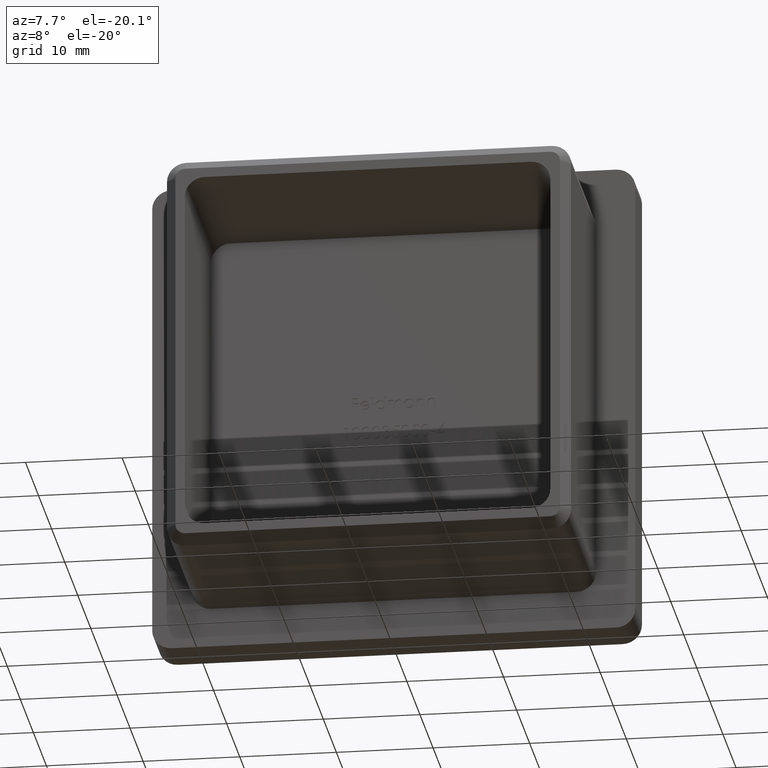
[diagram: clean part render]
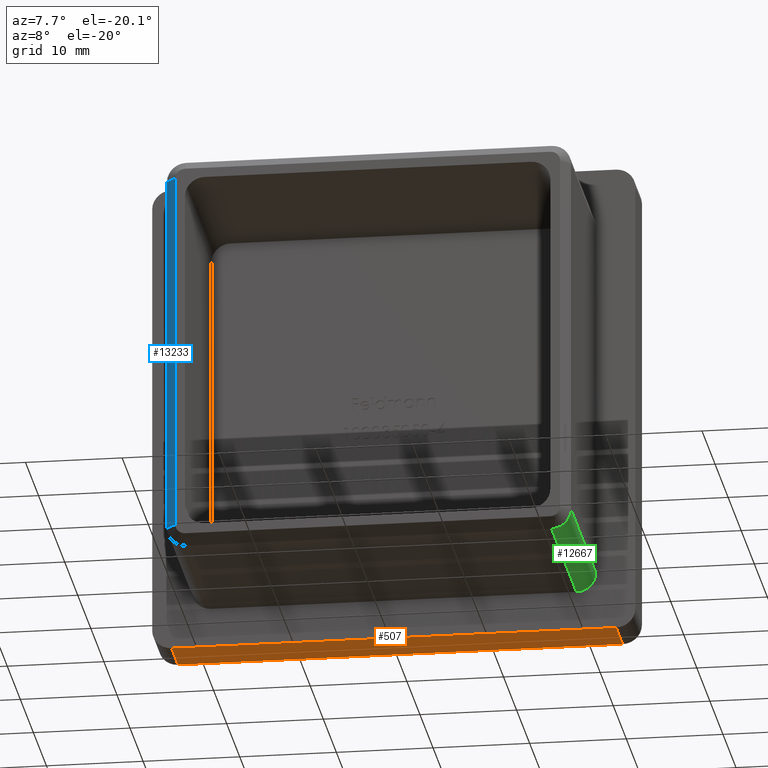
[diagram: same view with three faces highlighted in distinct colors, each labeled with its STEP entity id]
A machine part, auxiliary view with three faces highlighted in distinct colors.
Their STEP definitions:

[orange] entity #507 — the highlighted planar face has unit normal (0, 0, 1).
#140 = CARTESIAN_POINT ( 'NONE',  ( -25.00000000000000400, 0.0000000000000000000, -24.99999999999999600 ) ) ;
#507 = ADVANCED_FACE ( 'NONE', ( #9445 ), #8600, .F. ) ;
#1011 = VERTEX_POINT ( 'NONE', #3526 ) ;
#1629 = LINE ( 'NONE', #140, #6662 ) ;
#2802 = CARTESIAN_POINT ( 'NONE',  ( -25.00000000000000400, 5.000000000000000000, -24.99999999999999600 ) ) ;
#2876 = VECTOR ( 'NONE', #8047, 1000.000000000000000 ) ;
#2917 = LINE ( 'NONE', #12248, #14112 ) ;
#3526 = CARTESIAN_POINT ( 'NONE',  ( -23.00000000000000700, 0.0000000000000000000, -24.99999999999999600 ) ) ;
#3715 = CARTESIAN_POINT ( 'NONE',  ( 22.99999999999999600, 5.000000000000000000, -24.99999999999999600 ) ) ;
#4073 = AXIS2_PLACEMENT_3D ( 'NONE', #4934, #14795, #6681 ) ;
#4299 = VERTEX_POINT ( 'NONE', #8153 ) ;
#4934 = CARTESIAN_POINT ( 'NONE',  ( -25.00000000000000400, 5.000000000000000000, -24.99999999999999600 ) ) ;
#5013 = DIRECTION ( 'NONE',  ( -1.000000000000000000, -0.0000000000000000000, -0.0000000000000000000 ) ) ;
#5919 = CARTESIAN_POINT ( 'NONE',  ( 22.99999999999999600, 5.000000000000000000, -24.99999999999999600 ) ) ;
#5960 = ORIENTED_EDGE ( 'NONE', *, *, #9995, .T. ) ;
#6093 = EDGE_CURVE ( 'NONE', #4299, #1011, #1629, .T. ) ;
#6197 = LINE ( 'NONE', #2802, #2876 ) ;
#6514 = CARTESIAN_POINT ( 'NONE',  ( -23.00000000000000700, 5.000000000000000000, -24.99999999999999600 ) ) ;
#6662 = VECTOR ( 'NONE', #5013, 1000.000000000000000 ) ;
#6681 = DIRECTION ( 'NONE',  ( 1.000000000000000000, 0.0000000000000000000, -0.0000000000000000000 ) ) ;
#7365 = ORIENTED_EDGE ( 'NONE', *, *, #6093, .T. ) ;
#8020 = ORIENTED_EDGE ( 'NONE', *, *, #13967, .F. ) ;
#8047 = DIRECTION ( 'NONE',  ( -1.000000000000000000, -0.0000000000000000000, -0.0000000000000000000 ) ) ;
#8101 = VERTEX_POINT ( 'NONE', #6514 ) ;
#8153 = CARTESIAN_POINT ( 'NONE',  ( 22.99999999999999600, 0.0000000000000000000, -24.99999999999999600 ) ) ;
#8600 = PLANE ( 'NONE',  #4073 ) ;
#8659 = LINE ( 'NONE', #5919, #10386 ) ;
#9445 = FACE_OUTER_BOUND ( 'NONE', #14475, .T. ) ;
#9995 = EDGE_CURVE ( 'NONE', #1011, #8101, #2917, .T. ) ;
#10386 = VECTOR ( 'NONE', #14426, 1000.000000000000000 ) ;
#12248 = CARTESIAN_POINT ( 'NONE',  ( -23.00000000000000700, 5.000000000000000000, -24.99999999999999600 ) ) ;
#13828 = ORIENTED_EDGE ( 'NONE', *, *, #15378, .T. ) ;
#13967 = EDGE_CURVE ( 'NONE', #14713, #8101, #6197, .T. ) ;
#14112 = VECTOR ( 'NONE', #14534, 1000.000000000000000 ) ;
#14426 = DIRECTION ( 'NONE',  ( 0.0000000000000000000, -1.000000000000000000, 0.0000000000000000000 ) ) ;
#14475 = EDGE_LOOP ( 'NONE', ( #8020, #13828, #7365, #5960 ) ) ;
#14534 = DIRECTION ( 'NONE',  ( -0.0000000000000000000, 1.000000000000000000, -0.0000000000000000000 ) ) ;
#14713 = VERTEX_POINT ( 'NONE', #3715 ) ;
#14795 = DIRECTION ( 'NONE',  ( 0.0000000000000000000, 0.0000000000000000000, 1.000000000000000000 ) ) ;
#15378 = EDGE_CURVE ( 'NONE', #14713, #4299, #8659, .T. ) ;

[blue] entity #13233 — the highlighted planar face has unit normal (-0.7071, -0.7071, 0).
#1040 = DIRECTION ( 'NONE',  ( 0.0000000000000000000, 0.0000000000000000000, -1.000000000000000000 ) ) ;
#1308 = AXIS2_PLACEMENT_3D ( 'NONE', #11388, #2648, #10062 ) ;
#1803 = ORIENTED_EDGE ( 'NONE', *, *, #4596, .F. ) ;
#1827 = VECTOR ( 'NONE', #2893, 1000.000000000000000 ) ;
#2045 = CARTESIAN_POINT ( 'NONE',  ( -19.89999999999999900, -20.00000000000000000, 18.90000000000000600 ) ) ;
#2648 = DIRECTION ( 'NONE',  ( -0.7071067811865500200, -0.7071067811865451300, 0.0000000000000000000 ) ) ;
#2755 = PLANE ( 'NONE',  #1308 ) ;
#2893 = DIRECTION ( 'NONE',  ( 0.0000000000000000000, 0.0000000000000000000, 1.000000000000000000 ) ) ;
#3001 = CARTESIAN_POINT ( 'NONE',  ( -20.90000000000000600, -18.99999999999998600, 18.90000000000000600 ) ) ;
#3706 = CARTESIAN_POINT ( 'NONE',  ( -19.89999999999999900, -20.00000000000000000, -18.90000000000000900 ) ) ;
#4118 = CARTESIAN_POINT ( 'NONE',  ( -20.90000000000000600, -18.99999999999998600, 18.90000000000000600 ) ) ;
#4173 = CARTESIAN_POINT ( 'NONE',  ( -20.90000000000000600, -18.99999999999998600, -18.90000000000000900 ) ) ;
#4596 = EDGE_CURVE ( 'NONE', #5293, #9744, #10933, .T. ) ;
#5206 = CARTESIAN_POINT ( 'NONE',  ( -20.90000000000000600, -18.99999999999998600, 18.90000000000000600 ) ) ;
#5226 = EDGE_CURVE ( 'NONE', #10190, #6857, #11286, .T. ) ;
#5293 = VERTEX_POINT ( 'NONE', #2045 ) ;
#5324 = VECTOR ( 'NONE', #1040, 1000.000000000000000 ) ;
#6857 = VERTEX_POINT ( 'NONE', #5206 ) ;
#8273 = DIRECTION ( 'NONE',  ( -0.7071067811865451300, 0.7071067811865500200, -2.453269466693370600E-015 ) ) ;
#8688 = VECTOR ( 'NONE', #8273, 1000.000000000000100 ) ;
#8748 = ORIENTED_EDGE ( 'NONE', *, *, #5226, .F. ) ;
#8764 = EDGE_CURVE ( 'NONE', #6857, #5293, #14735, .T. ) ;
#9744 = VERTEX_POINT ( 'NONE', #15409 ) ;
#10062 = DIRECTION ( 'NONE',  ( -0.0000000000000000000, 0.0000000000000000000, 1.000000000000000000 ) ) ;
#10190 = VERTEX_POINT ( 'NONE', #4173 ) ;
#10933 = LINE ( 'NONE', #3706, #5324 ) ;
#11286 = LINE ( 'NONE', #3001, #1827 ) ;
#11382 = DIRECTION ( 'NONE',  ( 0.7071067811865451300, -0.7071067811865500200, 0.0000000000000000000 ) ) ;
#11388 = CARTESIAN_POINT ( 'NONE',  ( -19.89999999999999900, -20.00000000000000000, 0.0000000000000000000 ) ) ;
#11687 = ORIENTED_EDGE ( 'NONE', *, *, #13436, .F. ) ;
#11801 = FACE_OUTER_BOUND ( 'NONE', #15032, .T. ) ;
#11827 = CARTESIAN_POINT ( 'NONE',  ( -19.89999999999999900, -20.00000000000000000, -18.90000000000000600 ) ) ;
#12333 = LINE ( 'NONE', #11827, #8688 ) ;
#13233 = ADVANCED_FACE ( 'NONE', ( #11801 ), #2755, .T. ) ;
#13436 = EDGE_CURVE ( 'NONE', #9744, #10190, #12333, .T. ) ;
#14054 = ORIENTED_EDGE ( 'NONE', *, *, #8764, .F. ) ;
#14735 = LINE ( 'NONE', #4118, #15917 ) ;
#15032 = EDGE_LOOP ( 'NONE', ( #14054, #8748, #11687, #1803 ) ) ;
#15409 = CARTESIAN_POINT ( 'NONE',  ( -19.89999999999999900, -20.00000000000000000, -18.90000000000000600 ) ) ;
#15917 = VECTOR ( 'NONE', #11382, 1000.000000000000100 ) ;

[green] entity #12667 — the highlighted cylindrical surface (edge-blend (fillet) strip) has radius 2 mm, axis along (0, 1, 0).
#23 = CYLINDRICAL_SURFACE ( 'NONE', #4129, 1.999999999999998200 ) ;
#1126 = VERTEX_POINT ( 'NONE', #10959 ) ;
#1661 = DIRECTION ( 'NONE',  ( -0.0000000000000000000, -1.000000000000000000, -0.0000000000000000000 ) ) ;
#1684 = DIRECTION ( 'NONE',  ( 0.0000000000000000000, 1.000000000000000000, 0.0000000000000000000 ) ) ;
#1814 = CIRCLE ( 'NONE', #10932, 1.999999999999998200 ) ;
#2086 = VERTEX_POINT ( 'NONE', #13348 ) ;
#2393 = ORIENTED_EDGE ( 'NONE', *, *, #3434, .F. ) ;
#3324 = FACE_OUTER_BOUND ( 'NONE', #14577, .T. ) ;
#3434 = EDGE_CURVE ( 'NONE', #1126, #2086, #7456, .T. ) ;
#3577 = DIRECTION ( 'NONE',  ( 0.0000000000000000000, 1.000000000000000000, 0.0000000000000000000 ) ) ;
#4069 = CARTESIAN_POINT ( 'NONE',  ( 20.90000000000000600, -20.00000000000000000, -18.90000000000000900 ) ) ;
#4129 = AXIS2_PLACEMENT_3D ( 'NONE', #15666, #3577, #4819 ) ;
#4256 = CARTESIAN_POINT ( 'NONE',  ( 18.90000000000000600, -18.99999999999998600, -18.90000000000000900 ) ) ;
#4427 = DIRECTION ( 'NONE',  ( 0.0000000000000000000, 0.0000000000000000000, 1.000000000000000000 ) ) ;
#4819 = DIRECTION ( 'NONE',  ( 0.0000000000000000000, 0.0000000000000000000, 1.000000000000000000 ) ) ;
#5168 = EDGE_CURVE ( 'NONE', #13881, #9890, #14582, .T. ) ;
#6419 = EDGE_CURVE ( 'NONE', #1126, #9890, #1814, .T. ) ;
#7456 = LINE ( 'NONE', #4069, #8626 ) ;
#8626 = VECTOR ( 'NONE', #1684, 1000.000000000000000 ) ;
#9461 = CARTESIAN_POINT ( 'NONE',  ( 18.90000000000000900, -18.99999999999998600, -20.90000000000000600 ) ) ;
#9890 = VERTEX_POINT ( 'NONE', #9461 ) ;
#10462 = ORIENTED_EDGE ( 'NONE', *, *, #15147, .F. ) ;
#10567 = DIRECTION ( 'NONE',  ( 0.0000000000000000000, 1.000000000000000000, 0.0000000000000000000 ) ) ;
#10932 = AXIS2_PLACEMENT_3D ( 'NONE', #4256, #11845, #13008 ) ;
#10959 = CARTESIAN_POINT ( 'NONE',  ( 20.90000000000000600, -18.99999999999998600, -18.90000000000000900 ) ) ;
#11161 = AXIS2_PLACEMENT_3D ( 'NONE', #12011, #10567, #4427 ) ;
#11748 = CARTESIAN_POINT ( 'NONE',  ( 18.90000000000000900, -20.00000000000000000, -20.90000000000000600 ) ) ;
#11845 = DIRECTION ( 'NONE',  ( 0.0000000000000000000, 1.000000000000000000, 0.0000000000000000000 ) ) ;
#12011 = CARTESIAN_POINT ( 'NONE',  ( 18.90000000000000600, 0.0000000000000000000, -18.90000000000000900 ) ) ;
#12348 = ORIENTED_EDGE ( 'NONE', *, *, #6419, .T. ) ;
#12667 = ADVANCED_FACE ( 'NONE', ( #3324 ), #23, .T. ) ;
#13008 = DIRECTION ( 'NONE',  ( 0.0000000000000000000, 0.0000000000000000000, -1.000000000000000000 ) ) ;
#13348 = CARTESIAN_POINT ( 'NONE',  ( 20.90000000000000600, 0.0000000000000000000, -18.90000000000000900 ) ) ;
#13825 = CIRCLE ( 'NONE', #11161, 1.999999999999998200 ) ;
#13881 = VERTEX_POINT ( 'NONE', #14564 ) ;
#14564 = CARTESIAN_POINT ( 'NONE',  ( 18.90000000000000900, 0.0000000000000000000, -20.90000000000000600 ) ) ;
#14577 = EDGE_LOOP ( 'NONE', ( #2393, #12348, #15341, #10462 ) ) ;
#14582 = LINE ( 'NONE', #11748, #15560 ) ;
#15147 = EDGE_CURVE ( 'NONE', #2086, #13881, #13825, .T. ) ;
#15341 = ORIENTED_EDGE ( 'NONE', *, *, #5168, .F. ) ;
#15560 = VECTOR ( 'NONE', #1661, 1000.000000000000000 ) ;
#15666 = CARTESIAN_POINT ( 'NONE',  ( 18.90000000000000600, -20.00000000000000000, -18.90000000000000900 ) ) ;